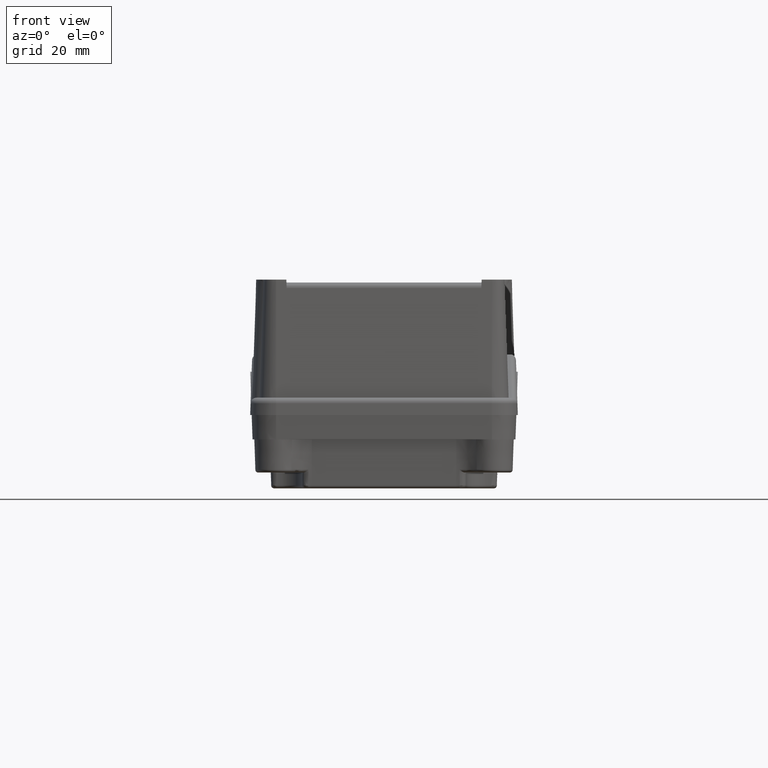
[diagram: clean part render]
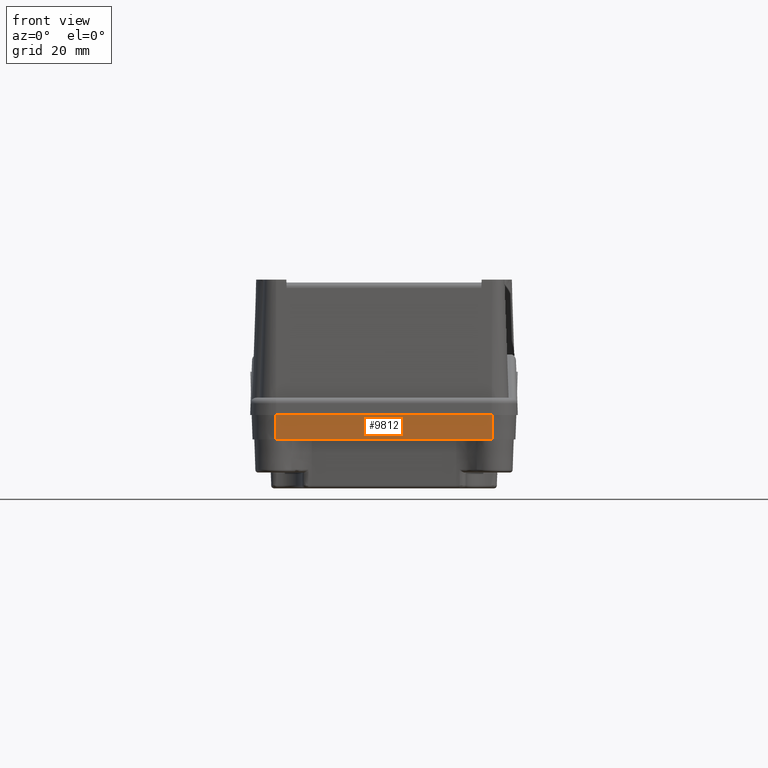
[diagram: same view with one face highlighted and labeled with its STEP entity id]
A machine part, front view. The second image highlights one B-rep face of the part: STEP entity #9812.
In plain terms, the highlighted planar face has unit normal (-0, -0.9994, -0.0349).
Its self-contained STEP definition (entity closure, byte-faithful):
#9023=CARTESIAN_POINT('',(0.283278526198743,-75.477256797777002,23.499999999999986));
#9024=VERTEX_POINT('',#9023);
#9032=CARTESIAN_POINT('',(75.283278526198785,-75.477256797776988,23.499999999999986));
#9033=VERTEX_POINT('',#9032);
#9034=CARTESIAN_POINT('',(75.283278526198785,-75.477256797776988,23.499999999999986));
#9035=DIRECTION('',(-1.0,0.0,0.0));
#9036=VECTOR('',#9035,75.000000000000043);
#9037=LINE('',#9034,#9036);
#9038=EDGE_CURVE('',#9033,#9024,#9037,.T.);
#9385=CARTESIAN_POINT('',(75.283278526198785,-75.774083338456848,14.999999999999998));
#9386=VERTEX_POINT('',#9385);
#9394=CARTESIAN_POINT('',(0.283278526198743,-75.774083338456862,14.999999999999998));
#9395=VERTEX_POINT('',#9394);
#9396=CARTESIAN_POINT('',(0.283278526198743,-75.774083338456862,14.999999999999998));
#9397=DIRECTION('',(1.0,0.0,0.0));
#9398=VECTOR('',#9397,75.000000000000043);
#9399=LINE('',#9396,#9398);
#9400=EDGE_CURVE('',#9395,#9386,#9399,.T.);
#9761=CARTESIAN_POINT('',(0.283278526198743,-75.774083338456862,14.999999999999998));
#9762=DIRECTION('',(2.610698E-017,0.034899496702501,0.999390827019096));
#9763=VECTOR('',#9762,8.505181126539974);
#9764=LINE('',#9761,#9763);
#9765=EDGE_CURVE('',#9395,#9024,#9764,.T.);
#9796=CARTESIAN_POINT('',(75.283278526198785,-76.297894880833056,0.0));
#9797=DIRECTION('',(2.367033E-016,-0.999390827019096,0.034899496702501));
#9798=DIRECTION('',(1.0,0.0,0.0));
#9799=AXIS2_PLACEMENT_3D('',#9796,#9797,#9798);
#9800=PLANE('',#9799);
#9801=ORIENTED_EDGE('',*,*,#9400,.T.);
#9802=CARTESIAN_POINT('',(75.283278526198785,-75.774083338456848,14.999999999999998));
#9803=DIRECTION('',(0.0,0.034899496702501,0.999390827019096));
#9804=VECTOR('',#9803,8.505181126539974);
#9805=LINE('',#9802,#9804);
#9806=EDGE_CURVE('',#9386,#9033,#9805,.T.);
#9807=ORIENTED_EDGE('',*,*,#9806,.T.);
#9808=ORIENTED_EDGE('',*,*,#9038,.T.);
#9809=ORIENTED_EDGE('',*,*,#9765,.F.);
#9810=EDGE_LOOP('',(#9801,#9807,#9808,#9809));
#9811=FACE_OUTER_BOUND('',#9810,.T.);
#9812=ADVANCED_FACE('',(#9811),#9800,.T.);